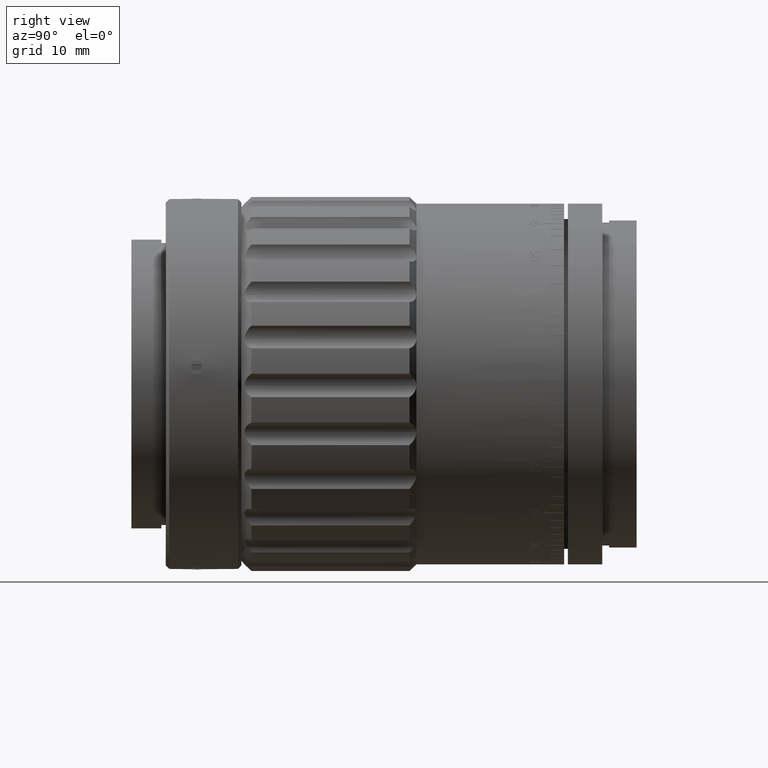
[diagram: clean part render]
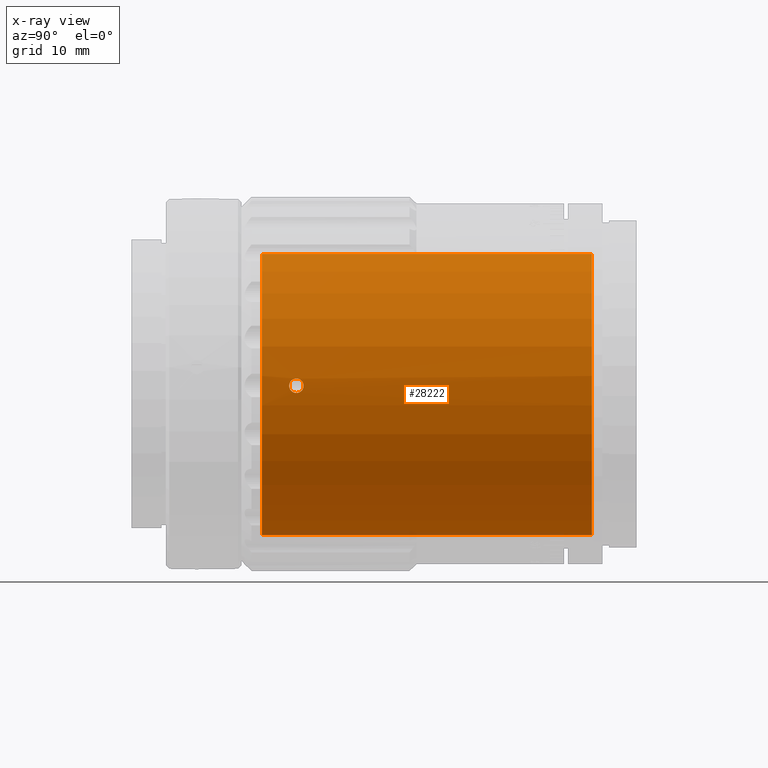
[diagram: x-ray — body ghosted, one internal face saturated and labeled with its STEP entity id]
A machine part, right view, then the same camera in x-ray: the body is ghosted and one INTERNAL B-rep face — a face not visible from any outside direction — is saturated and labeled: STEP entity #28222.
In plain terms, the highlighted cylindrical surface (partial cylindrical patch) has radius 22 mm, axis along (-0, 1, 0).
Its self-contained STEP definition (entity closure, byte-faithful):
#68 = ORIENTED_EDGE ( 'NONE', *, *, #13610, .T. ) ;
#1818 = CARTESIAN_POINT ( 'NONE',  ( 18.72182047818960300, -26.82704297232857700, 11.55434269220559400 ) ) ;
#2805 = CARTESIAN_POINT ( 'NONE',  ( 1.050000000000006500, -26.12640265326350400, -21.97492889635822500 ) ) ;
#3096 = CARTESIAN_POINT ( 'NONE',  ( 0.6452734556052705000, -26.82717897748728200, -21.99074866082714800 ) ) ;
#3400 = CARTESIAN_POINT ( 'NONE',  ( 0.5280778904711541700, -26.90539479657048000, -21.99402457970644400 ) ) ;
#3463 = ORIENTED_EDGE ( 'NONE', *, *, #37427, .T. ) ;
#6241 = DIRECTION ( 'NONE',  ( 0.0000000000000000000, 0.0000000000000000000, 1.000000000000000000 ) ) ;
#7470 = EDGE_CURVE ( 'NONE', #46498, #61995, #67735, .T. ) ;
#8550 = CARTESIAN_POINT ( 'NONE',  ( 18.98387422857160400, -27.03754910988006800, 11.11896064655869200 ) ) ;
#9129 = CARTESIAN_POINT ( 'NONE',  ( 19.55584667060300700, -26.12466502456822700, 10.07813777420538100 ) ) ;
#9317 = VERTEX_POINT ( 'NONE', #77727 ) ;
#9648 = VERTEX_POINT ( 'NONE', #43987 ) ;
#10134 = CARTESIAN_POINT ( 'NONE',  ( 0.2752685310984183100, -27.01006777960279900, -21.99864111046231900 ) ) ;
#12131 = EDGE_CURVE ( 'NONE', #73582, #9648, #18474, .T. ) ;
#12422 = CARTESIAN_POINT ( 'NONE',  ( 18.72207168930246000, -25.14777770515352300, 11.55393636945051800 ) ) ;
#13148 = EDGE_CURVE ( 'NONE', #9317, #46498, #47002, .T. ) ;
#13555 = DIRECTION ( 'NONE',  ( -0.0000000000000000000, 1.000000000000000000, -0.0000000000000000000 ) ) ;
#13610 = EDGE_CURVE ( 'NONE', #78042, #9648, #24844, .T. ) ;
#16132 = CARTESIAN_POINT ( 'NONE',  ( 19.54340781873590800, -26.26213487929536300, 10.10237565422833100 ) ) ;
#16966 = EDGE_CURVE ( 'NONE', #9317, #78042, #17342, .T. ) ;
#17342 = LINE ( 'NONE', #46938, #30859 ) ;
#18474 = LINE ( 'NONE', #56324, #75837 ) ;
#19156 = CARTESIAN_POINT ( 'NONE',  ( 19.18926782051414600, -24.96517474697339300, 10.76048916796342800 ) ) ;
#19882 = AXIS2_PLACEMENT_3D ( 'NONE', #76853, #36871, #37441 ) ;
#20012 = CARTESIAN_POINT ( 'NONE',  ( 0.6453629775125604400, -25.14809457406774800, -21.99074583981704800 ) ) ;
#21762 = AXIS2_PLACEMENT_3D ( 'NONE', #33547, #26306, #53673 ) ;
#21960 = CARTESIAN_POINT ( 'NONE',  ( 18.91359356847835100, -27.00998241341090600, 11.23796916777313400 ) ) ;
#23539 = CARTESIAN_POINT ( 'NONE',  ( 2.694222978481096500E-015, -27.03759798191791900, -22.00000000000000000 ) ) ;
#24564 = VERTEX_POINT ( 'NONE', #31330 ) ;
#24844 = CIRCLE ( 'NONE', #21762, 22.00000000000000000 ) ;
#25301 = EDGE_CURVE ( 'NONE', #24564, #38880, #43865, .T. ) ;
#25844 = CARTESIAN_POINT ( 'NONE',  ( 18.50584667060307700, -25.71011499211089200, 11.89679112215261200 ) ) ;
#26306 = DIRECTION ( 'NONE',  ( -0.0000000000000000000, 1.000000000000000000, -0.0000000000000000000 ) ) ;
#26413 = B_SPLINE_CURVE_WITH_KNOTS ( 'NONE', 3,
 ( #53505, #46212, #66937, #66365, #79758, #26981, #33668, #19156, #38929, #85594, #45636, #59908, #12422, #65783, #25844, #72498 ),
 .UNSPECIFIED., .F., .F.,
 ( 4, 2, 2, 2, 2, 2, 2, 4 ),
 ( 0.003283245537926431000, 0.003693557782897869000, 0.004103870027869307500, 0.004514182272840745900, 0.004924494517812183500, 0.005334806762783622000, 0.005745119007755060400, 0.006565743497697933800 ),
 .UNSPECIFIED. ) ;
#26981 = CARTESIAN_POINT ( 'NONE',  ( 19.36764743133077000, -25.14879032018012600, 10.43568879136094200 ) ) ;
#27881 = ORIENTED_EDGE ( 'NONE', *, *, #59537, .T. ) ;
#28222 = ADVANCED_FACE ( 'NONE', ( #74034, #85499 ), #44744, .F. ) ;
#28371 = CARTESIAN_POINT ( 'NONE',  ( 18.57742996113400500, -26.51687130021769800, 11.78481568067971700 ) ) ;
#28950 = CARTESIAN_POINT ( 'NONE',  ( 19.45901568434538100, -26.63222315200917500, 10.26432330678003500 ) ) ;
#29929 = CARTESIAN_POINT ( 'NONE',  ( 1.022657403894558200, -26.26260699377798200, -21.97628173363153100 ) ) ;
#30519 = CARTESIAN_POINT ( 'NONE',  ( 0.8391166155942695300, -26.63347520404580100, -21.98420541665341300 ) ) ;
#30859 = VECTOR ( 'NONE', #47230, 1000.000000000000000 ) ;
#31330 = CARTESIAN_POINT ( 'NONE',  ( 18.50584667060307400, -25.98759798191792200, 11.89679112215261000 ) ) ;
#32485 = CARTESIAN_POINT ( 'NONE',  ( 0.0000000000000000000, -30.98759798191792200, 0.0000000000000000000 ) ) ;
#32803 = CARTESIAN_POINT ( 'NONE',  ( 1.050000000000006300, -25.98759798191791900, -21.97492889635822900 ) ) ;
#33547 = CARTESIAN_POINT ( 'NONE',  ( 0.0000000000000000000, 17.01240201808208900, 0.0000000000000000000 ) ) ;
#33668 = CARTESIAN_POINT ( 'NONE',  ( 19.31221054893713100, -25.07064458686189900, 10.53824702380803500 ) ) ;
#35323 = CARTESIAN_POINT ( 'NONE',  ( 19.18852888640512700, -27.01044228479297300, 10.76180883151191000 ) ) ;
#36614 = CARTESIAN_POINT ( 'NONE',  ( 0.9171759427038890200, -26.51698103082469500, -21.98093663363352900 ) ) ;
#36871 = DIRECTION ( 'NONE',  ( -0.0000000000000000000, 1.000000000000000000, -0.0000000000000000000 ) ) ;
#37427 = EDGE_CURVE ( 'NONE', #47731, #61995, #63442, .T. ) ;
#37441 = DIRECTION ( 'NONE',  ( 0.0000000000000000000, 0.0000000000000000000, 1.000000000000000000 ) ) ;
#37763 = ORIENTED_EDGE ( 'NONE', *, *, #66973, .T. ) ;
#38880 = VERTEX_POINT ( 'NONE', #80414 ) ;
#38929 = CARTESIAN_POINT ( 'NONE',  ( 19.12224608677885800, -24.93771279130265800, 10.87928726378995800 ) ) ;
#40061 = CARTESIAN_POINT ( 'NONE',  ( 2.694222958124176800E-015, 27.76768902714551100, -22.00000000000000000 ) ) ;
#41491 = ORIENTED_EDGE ( 'NONE', *, *, #12131, .F. ) ;
#41755 = CARTESIAN_POINT ( 'NONE',  ( 18.52068240780437600, -26.26254310747903600, 11.87379921245426600 ) ) ;
#42041 = CARTESIAN_POINT ( 'NONE',  ( 19.49473380678137200, -26.51663188224182100, 10.19598630988237400 ) ) ;
#42342 = CARTESIAN_POINT ( 'NONE',  ( 18.61927182370335000, -26.63334677480301600, 11.71887852234720400 ) ) ;
#43865 = B_SPLINE_CURVE_WITH_KNOTS ( 'NONE', 3,
 ( #68906, #49313, #41755, #28371, #42342, #1818, #75013, #21960, #8550, #56009, #35323, #82010, #49026, #28950, #42041, #16132, #9129, #48737 ),
 .UNSPECIFIED., .F., .F.,
 ( 4, 2, 2, 2, 2, 2, 2, 2, 4 ),
 ( 3.469446951953614200E-018, 0.0004104056922408069100, 0.0008208113844816103500, 0.001231217076722413700, 0.001641622768963217200, 0.002052028461204020700, 0.002462434153444824000, 0.002872839845685627700, 0.003283245537926431000 ),
 .UNSPECIFIED. ) ;
#43987 = CARTESIAN_POINT ( 'NONE',  ( 2.694222958124176800E-015, 17.01240201808208900, -22.00000000000000000 ) ) ;
#44744 = CYLINDRICAL_SURFACE ( 'NONE', #19882, 22.00000000000000000 ) ;
#45636 = CARTESIAN_POINT ( 'NONE',  ( 18.91442165973855800, -24.96464548024014700, 11.23658625812101500 ) ) ;
#45910 = CARTESIAN_POINT ( 'NONE',  ( 0.5291009126521584200, -25.07025698083676000, -21.99400468421765700 ) ) ;
#46212 = CARTESIAN_POINT ( 'NONE',  ( 19.55584667060311700, -25.85056214873140600, 10.07813777420517800 ) ) ;
#46498 = VERTEX_POINT ( 'NONE', #76533 ) ;
#46938 = CARTESIAN_POINT ( 'NONE',  ( 0.0000000000000000000, 27.76768902714551100, 22.00000000000000000 ) ) ;
#47002 = CIRCLE ( 'NONE', #60815, 22.00000000000000000 ) ;
#47230 = DIRECTION ( 'NONE',  ( -0.0000000000000000000, 1.000000000000000000, -0.0000000000000000000 ) ) ;
#47731 = VERTEX_POINT ( 'NONE', #61889 ) ;
#48737 = CARTESIAN_POINT ( 'NONE',  ( 19.55584667060580300, -25.98759798191843700, 10.07813777419994700 ) ) ;
#48963 = CARTESIAN_POINT ( 'NONE',  ( 2.694222959134874500E-015, -24.93759798191792100, -22.00000000000000000 ) ) ;
#49026 = CARTESIAN_POINT ( 'NONE',  ( 19.36670101474446100, -26.82823082978351100, 10.43745736064122400 ) ) ;
#49313 = CARTESIAN_POINT ( 'NONE',  ( 18.50584667060307000, -26.12637107474230200, 11.89679112215260800 ) ) ;
#50492 = CARTESIAN_POINT ( 'NONE',  ( 0.0000000000000000000, 17.01240201808208900, 22.00000000000000000 ) ) ;
#53213 = CARTESIAN_POINT ( 'NONE',  ( 0.9359957725577251500, -25.43855400198756900, -21.98093482476240700 ) ) ;
#53505 = CARTESIAN_POINT ( 'NONE',  ( 19.55584667060580300, -25.98759798191843700, 10.07813777419994700 ) ) ;
#53673 = DIRECTION ( 'NONE',  ( 0.0000000000000000000, 0.0000000000000000000, 1.000000000000000000 ) ) ;
#56009 = CARTESIAN_POINT ( 'NONE',  ( 19.12086945240270800, -27.03764672068351200, 10.88168727588324600 ) ) ;
#56324 = CARTESIAN_POINT ( 'NONE',  ( 2.694222958124176800E-015, 27.76768902714551100, -22.00000000000000000 ) ) ;
#56728 = CARTESIAN_POINT ( 'NONE',  ( 0.1370249648630386400, -27.03759798191791900, -21.99999999999999600 ) ) ;
#58306 = VECTOR ( 'NONE', #13555, 1000.000000000000000 ) ;
#58790 = CARTESIAN_POINT ( 'NONE',  ( 2.694222978481096500E-015, -27.03759798191791900, -22.00000000000000000 ) ) ;
#59537 = EDGE_CURVE ( 'NONE', #38880, #24564, #26413, .T. ) ;
#59908 = CARTESIAN_POINT ( 'NONE',  ( 18.78307176238570300, -25.06996251888181600, 11.45479954550273800 ) ) ;
#60193 = CARTESIAN_POINT ( 'NONE',  ( 2.694222959134874500E-015, -24.93759798191792100, -22.00000000000000000 ) ) ;
#60815 = AXIS2_PLACEMENT_3D ( 'NONE', #32485, #79429, #6241 ) ;
#61889 = CARTESIAN_POINT ( 'NONE',  ( 1.050000000000006300, -25.98759798191791900, -21.97492889635822900 ) ) ;
#61995 = VERTEX_POINT ( 'NONE', #58790 ) ;
#63442 = B_SPLINE_CURVE_WITH_KNOTS ( 'NONE', 3,
 ( #83284, #2805, #29929, #36614, #30519, #3096, #3400, #10134, #56728, #23539 ),
 .UNSPECIFIED., .F., .F.,
 ( 4, 2, 2, 2, 4 ),
 ( 0.0000000000000000000, 0.0004104990821378704400, 0.0008209981642757408800, 0.001231497246413611300, 0.001641996328551481800 ),
 .UNSPECIFIED. ) ;
#65783 = CARTESIAN_POINT ( 'NONE',  ( 18.56811481689640800, -25.43827787464436300, 11.80096470723135500 ) ) ;
#66224 = ORIENTED_EDGE ( 'NONE', *, *, #16966, .T. ) ;
#66365 = CARTESIAN_POINT ( 'NONE',  ( 19.49497256239587300, -25.45971369266461800, 10.19552769725597800 ) ) ;
#66367 = CARTESIAN_POINT ( 'NONE',  ( 1.050000000000006500, -25.71025981354773600, -21.97492889635823200 ) ) ;
#66796 = EDGE_LOOP ( 'NONE', ( #73517, #84389, #66224, #68, #41491, #37763, #3463 ) ) ;
#66937 = CARTESIAN_POINT ( 'NONE',  ( 19.54327043175224400, -25.71244169702759700, 10.10263931185707200 ) ) ;
#66973 = EDGE_CURVE ( 'NONE', #73582, #47731, #73326, .T. ) ;
#67735 = LINE ( 'NONE', #40061, #58306 ) ;
#68906 = CARTESIAN_POINT ( 'NONE',  ( 18.50584667060307400, -25.98759798191792200, 11.89679112215261000 ) ) ;
#72498 = CARTESIAN_POINT ( 'NONE',  ( 18.50584667060307400, -25.98759798191792200, 11.89679112215261000 ) ) ;
#72587 = EDGE_LOOP ( 'NONE', ( #77587, #27881 ) ) ;
#72782 = CARTESIAN_POINT ( 'NONE',  ( 0.2746648881267850800, -24.96484606318873400, -21.99865334570249700 ) ) ;
#73326 = B_SPLINE_CURVE_WITH_KNOTS ( 'NONE', 3,
 ( #60193, #79759, #72782, #45910, #20012, #53213, #66367, #32803 ),
 .UNSPECIFIED., .F., .F.,
 ( 4, 2, 2, 4 ),
 ( 0.004925351103780365900, 0.005335449202259754000, 0.005745547300739141200, 0.006565743497697924300 ),
 .UNSPECIFIED. ) ;
#73517 = ORIENTED_EDGE ( 'NONE', *, *, #7470, .F. ) ;
#73582 = VERTEX_POINT ( 'NONE', #48963 ) ;
#74034 = FACE_OUTER_BOUND ( 'NONE', #66796, .T. ) ;
#75013 = CARTESIAN_POINT ( 'NONE',  ( 18.78323229724549400, -26.90526577262764400, 11.45452561903454700 ) ) ;
#75837 = VECTOR ( 'NONE', #76489, 1000.000000000000000 ) ;
#76489 = DIRECTION ( 'NONE',  ( -0.0000000000000000000, 1.000000000000000000, -0.0000000000000000000 ) ) ;
#76533 = CARTESIAN_POINT ( 'NONE',  ( 2.694222958124176800E-015, -30.98759798191792200, -22.00000000000000000 ) ) ;
#76853 = CARTESIAN_POINT ( 'NONE',  ( 0.0000000000000000000, 27.76768902714551100, 0.0000000000000000000 ) ) ;
#77587 = ORIENTED_EDGE ( 'NONE', *, *, #25301, .T. ) ;
#77727 = CARTESIAN_POINT ( 'NONE',  ( 0.0000000000000000000, -30.98759798191792200, 22.00000000000000000 ) ) ;
#78042 = VERTEX_POINT ( 'NONE', #50492 ) ;
#79429 = DIRECTION ( 'NONE',  ( -0.0000000000000000000, 1.000000000000000000, -0.0000000000000000000 ) ) ;
#79758 = CARTESIAN_POINT ( 'NONE',  ( 19.45871696526921500, -25.34252416813497900, 10.26487708840264200 ) ) ;
#79759 = CARTESIAN_POINT ( 'NONE',  ( 0.1384624962215425200, -24.93759798191792500, -22.00000000000000400 ) ) ;
#80414 = CARTESIAN_POINT ( 'NONE',  ( 19.55584667060580300, -25.98759798191843700, 10.07813777419994700 ) ) ;
#82010 = CARTESIAN_POINT ( 'NONE',  ( 19.31165099353660600, -26.90524202066539100, 10.53927445577959800 ) ) ;
#83284 = CARTESIAN_POINT ( 'NONE',  ( 1.050000000000006300, -25.98759798191791900, -21.97492889635822900 ) ) ;
#84389 = ORIENTED_EDGE ( 'NONE', *, *, #13148, .F. ) ;
#85499 = FACE_BOUND ( 'NONE', #72587, .T. ) ;
#85594 = CARTESIAN_POINT ( 'NONE',  ( 18.98373922634089400, -24.93748388937950000, 11.11921003298695100 ) ) ;